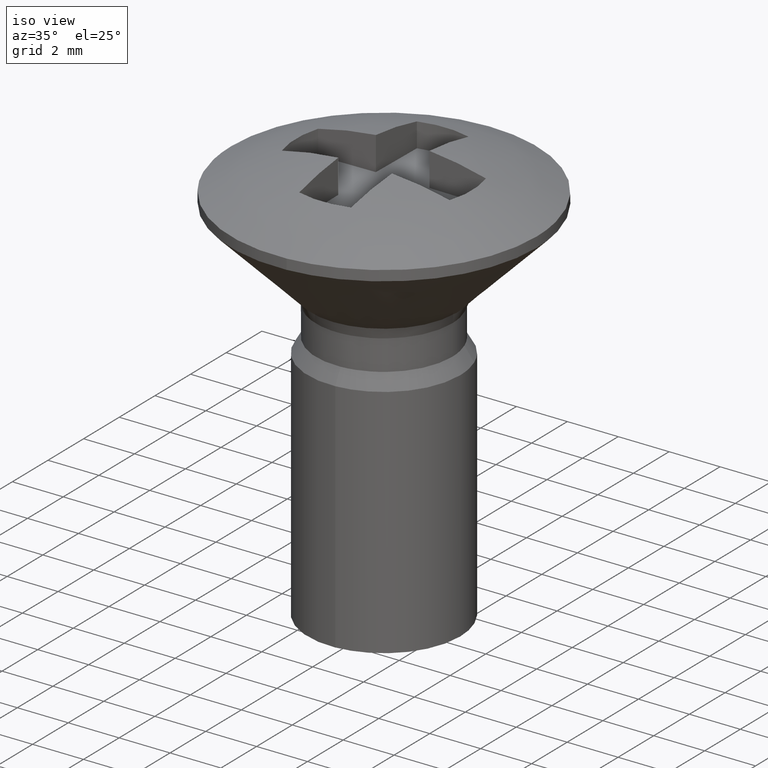
[diagram: clean part render]
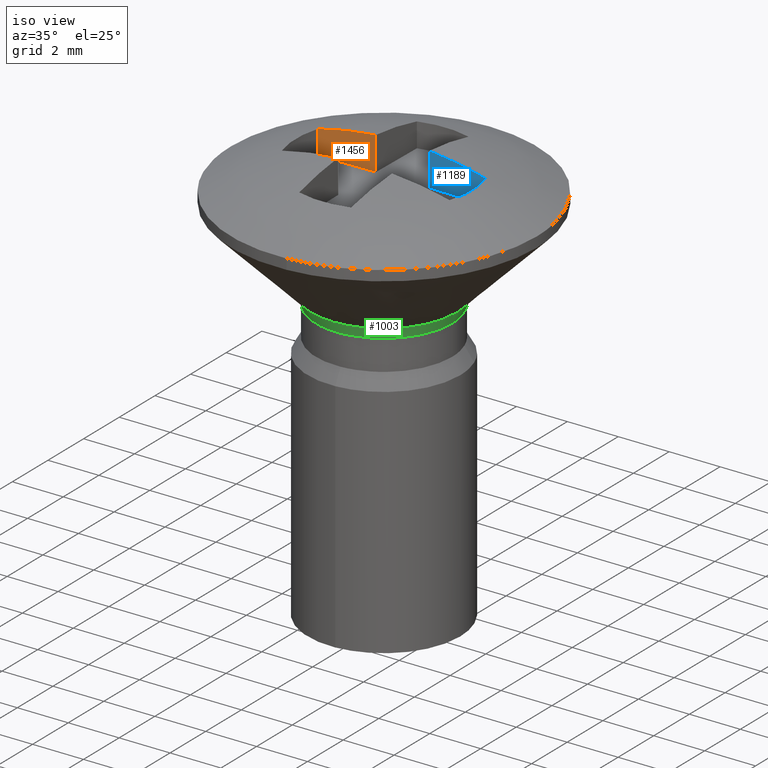
[diagram: same view with three faces highlighted in distinct colors, each labeled with its STEP entity id]
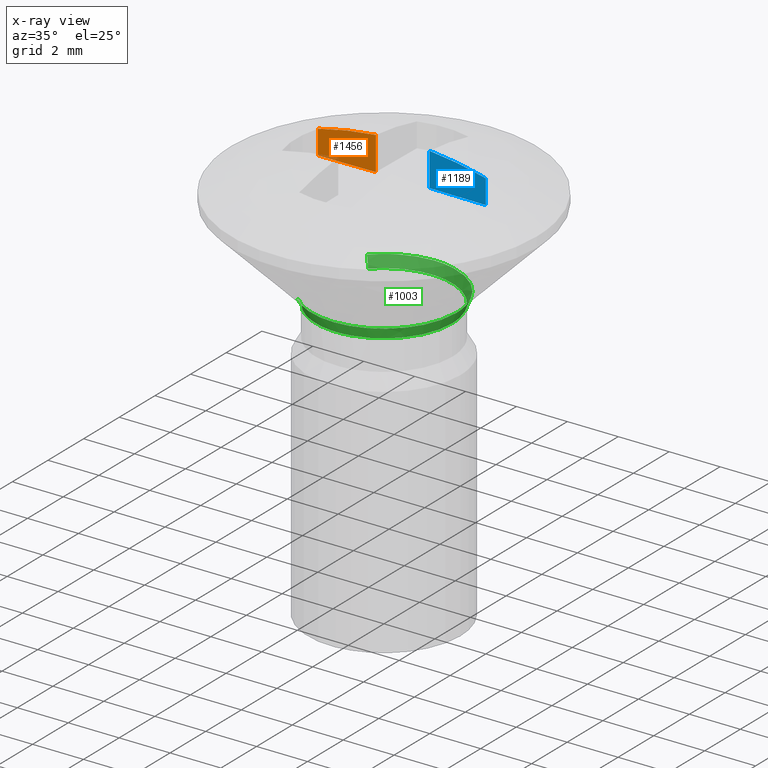
[diagram: x-ray of the same camera — body ghosted, the three highlighted faces saturated]
A machine part, iso view with three faces highlighted in distinct colors.
The next image is the same camera in x-ray (body ghosted, the three faces saturated) — at least one of them is partly hidden behind the body in this view.
Their STEP definitions:

[orange] entity #1456 — the highlighted face is a freeform B-spline surface patch.
#1059=CARTESIAN_POINT('',(-1.054135119686950,1.053812710704996,0.0));
#1060=VERTEX_POINT('',#1059);
#1066=CARTESIAN_POINT('',(-3.297313371468450,1.014999768638080,0.0));
#1067=VERTEX_POINT('',#1066);
#1068=CARTESIAN_POINT('',(-1.054135119686950,1.053812710704996,0.0));
#1069=CARTESIAN_POINT('',(-3.297313371468450,1.014999768638080,0.0));
#1070=QUASI_UNIFORM_CURVE('',1,(#1068,#1069),.UNSPECIFIED.,.F.,.U.);
#1071=EDGE_CURVE('',#1060,#1067,#1070,.T.);
#1402=CARTESIAN_POINT('',(-3.297313371468450,1.014999768638080,0.953676499124700));
#1403=VERTEX_POINT('',#1402);
#1419=CARTESIAN_POINT('',(-3.297313371468450,1.014999768638080,0.953676499124700));
#1420=CARTESIAN_POINT('',(-3.297313371468450,1.014999768638080,0.0));
#1421=QUASI_UNIFORM_CURVE('',1,(#1419,#1420),.UNSPECIFIED.,.F.,.U.);
#1422=EDGE_CURVE('',#1403,#1067,#1421,.T.);
#1427=CARTESIAN_POINT('',(-3.409360205026631,1.013061060799670,-0.065824678900434));
#1428=CARTESIAN_POINT('',(-0.942088306184345,1.055751418196390,-0.065824678900434));
#1429=CARTESIAN_POINT('',(-3.409360205026631,1.013061060799670,1.383636154779596));
#1430=CARTESIAN_POINT('',(-0.942088306184345,1.055751418196390,1.383636154779596));
#1431=B_SPLINE_SURFACE_WITH_KNOTS('',1,1,((#1427,#1429),(#1428,#1430)),.UNSPECIFIED.,.F.,.F.,.U.,(2,2),(2,2),(0.0,2.467641199492235),(0.041708334948495,0.958291687403247),.UNSPECIFIED.);
#1432=CARTESIAN_POINT('',(-1.054135119686950,1.053812710704996,1.317811440532704));
#1433=VERTEX_POINT('',#1432);
#1434=CARTESIAN_POINT('',(-1.054135119686949,1.053812710704996,1.317811440532703));
#1435=CARTESIAN_POINT('',(-2.191086262598551,1.034140435972617,1.230406841166867));
#1436=CARTESIAN_POINT('',(-3.297313371468450,1.014999768638080,0.953676499124700));
#1444=(BOUNDED_CURVE()B_SPLINE_CURVE(2,(#1434,#1435,#1436),.UNSPECIFIED.,.F.,.U.)CURVE()GEOMETRIC_REPRESENTATION_ITEM()QUASI_UNIFORM_CURVE()RATIONAL_B_SPLINE_CURVE((1.0,0.996458235029274,1.0))REPRESENTATION_ITEM(''));
#1445=EDGE_CURVE('',#1433,#1403,#1444,.T.);
#1446=ORIENTED_EDGE('',*,*,#1445,.T.);
#1447=ORIENTED_EDGE('',*,*,#1422,.T.);
#1448=ORIENTED_EDGE('',*,*,#1071,.F.);
#1449=CARTESIAN_POINT('',(-1.054135119686950,1.053812710704996,1.317811440532704));
#1450=CARTESIAN_POINT('',(-1.054135119686950,1.053812710704996,0.0));
#1451=QUASI_UNIFORM_CURVE('',1,(#1449,#1450),.UNSPECIFIED.,.F.,.U.);
#1452=EDGE_CURVE('',#1433,#1060,#1451,.T.);
#1453=ORIENTED_EDGE('',*,*,#1452,.F.);
#1454=EDGE_LOOP('',(#1446,#1447,#1448,#1453));
#1455=FACE_OUTER_BOUND('',#1454,.T.);
#1456=ADVANCED_FACE('',(#1455),#1431,.T.);

[blue] entity #1189 — the highlighted face is a freeform B-spline surface patch.
#1035=CARTESIAN_POINT('',(1.054135119686950,1.053812710704996,0.0));
#1036=VERTEX_POINT('',#1035);
#1131=CARTESIAN_POINT('',(3.297313371468450,1.014999768638080,0.0));
#1132=VERTEX_POINT('',#1131);
#1146=CARTESIAN_POINT('',(3.297313371468450,1.014999768638080,0.0));
#1147=CARTESIAN_POINT('',(1.054135119686950,1.053812710704996,0.0));
#1148=QUASI_UNIFORM_CURVE('',1,(#1146,#1147),.UNSPECIFIED.,.F.,.U.);
#1149=EDGE_CURVE('',#1132,#1036,#1148,.T.);
#1154=CARTESIAN_POINT('',(0.942088328243474,1.055751417814710,-0.065824678900434));
#1155=CARTESIAN_POINT('',(3.409360182967502,1.013061061181354,-0.065824678900434));
#1156=CARTESIAN_POINT('',(0.942088328243474,1.055751417814710,1.383636154779596));
#1157=CARTESIAN_POINT('',(3.409360182967502,1.013061061181354,1.383636154779596));
#1158=B_SPLINE_SURFACE_WITH_KNOTS('',1,1,((#1154,#1156),(#1155,#1157)),.UNSPECIFIED.,.F.,.F.,.U.,(2,2),(2,2),(0.0,2.467641155367374),(0.041708334948495,0.958291687403247),.UNSPECIFIED.);
#1159=CARTESIAN_POINT('',(3.297313371468450,1.014999768638080,0.953676499124680));
#1160=VERTEX_POINT('',#1159);
#1161=CARTESIAN_POINT('',(1.054135119686950,1.053812710704996,1.317811440532704));
#1162=VERTEX_POINT('',#1161);
#1163=CARTESIAN_POINT('',(3.297313371468450,1.014999768638080,0.953676499124678));
#1164=CARTESIAN_POINT('',(2.191086262598550,1.034140435972619,1.230406841166867));
#1165=CARTESIAN_POINT('',(1.054135119686951,1.053812710704998,1.317811440532703));
#1173=(BOUNDED_CURVE()B_SPLINE_CURVE(2,(#1163,#1164,#1165),.UNSPECIFIED.,.F.,.U.)CURVE()GEOMETRIC_REPRESENTATION_ITEM()QUASI_UNIFORM_CURVE()RATIONAL_B_SPLINE_CURVE((1.0,0.996458235029274,1.0))REPRESENTATION_ITEM(''));
#1174=EDGE_CURVE('',#1160,#1162,#1173,.T.);
#1175=ORIENTED_EDGE('',*,*,#1174,.T.);
#1176=CARTESIAN_POINT('',(1.054135119686950,1.053812710704996,1.317811440532704));
#1177=CARTESIAN_POINT('',(1.054135119686950,1.053812710704996,0.0));
#1178=QUASI_UNIFORM_CURVE('',1,(#1176,#1177),.UNSPECIFIED.,.F.,.U.);
#1179=EDGE_CURVE('',#1162,#1036,#1178,.T.);
#1180=ORIENTED_EDGE('',*,*,#1179,.T.);
#1181=ORIENTED_EDGE('',*,*,#1149,.F.);
#1182=CARTESIAN_POINT('',(3.297313371468450,1.014999768638080,0.953676499124680));
#1183=CARTESIAN_POINT('',(3.297313371468450,1.014999768638080,0.0));
#1184=QUASI_UNIFORM_CURVE('',1,(#1182,#1183),.UNSPECIFIED.,.F.,.U.);
#1185=EDGE_CURVE('',#1160,#1132,#1184,.T.);
#1186=ORIENTED_EDGE('',*,*,#1185,.F.);
#1187=EDGE_LOOP('',(#1175,#1180,#1181,#1186));
#1188=FACE_OUTER_BOUND('',#1187,.T.);
#1189=ADVANCED_FACE('',(#1188),#1158,.T.);

[green] entity #1003 — the highlighted face is a freeform B-spline surface patch.
#85=CARTESIAN_POINT('',(-1.555346784566390,2.176355067478408,-3.973499999998483));
#86=VERTEX_POINT('',#85);
#92=CARTESIAN_POINT('',(2.675000000000000,0.0,-3.973500000000000));
#93=VERTEX_POINT('',#92);
#94=CARTESIAN_POINT('',(-1.555346784566390,2.176355067478409,-3.973499999998483));
#95=CARTESIAN_POINT('',(-0.857606183206234,2.675000000000000,-3.973500000000000));
#96=CARTESIAN_POINT('',(0.0,2.675000000000000,-3.973500000000000));
#97=CARTESIAN_POINT('',(2.675000000000000,2.675000000000000,-3.973499999999999));
#98=CARTESIAN_POINT('',(2.675000000000000,0.0,-3.973500000000000));
#106=(BOUNDED_CURVE()B_SPLINE_CURVE(2,(#94,#95,#96,#97,#98),.UNSPECIFIED.,.F.,.U.)B_SPLINE_CURVE_WITH_KNOTS((3,2,3),(0.149938498889355,0.250000000000000,0.500000000000000),.UNSPECIFIED.)CURVE()GEOMETRIC_REPRESENTATION_ITEM()RATIONAL_B_SPLINE_CURVE((0.859382469207064,0.882770659441590,1.0,0.707106781186548,1.0))REPRESENTATION_ITEM(''));
#107=EDGE_CURVE('',#86,#93,#106,.T.);
#109=CARTESIAN_POINT('',(1.151614677313381,-2.414416831242833,-3.973500000000000));
#110=VERTEX_POINT('',#109);
#111=CARTESIAN_POINT('',(2.675000000000000,0.0,-3.973500000000000));
#112=CARTESIAN_POINT('',(2.675000000000000,-1.687801246848165,-3.973500000000001));
#113=CARTESIAN_POINT('',(1.151614677313382,-2.414416831242833,-3.973499999999999));
#121=(BOUNDED_CURVE()B_SPLINE_CURVE(2,(#111,#112,#113),.UNSPECIFIED.,.F.,.U.)B_SPLINE_CURVE_WITH_KNOTS((3,3),(0.500000000000000,0.676854881414600),.UNSPECIFIED.)CURVE()GEOMETRIC_REPRESENTATION_ITEM()RATIONAL_B_SPLINE_CURVE((1.0,0.792801618078426,0.878755598269148))REPRESENTATION_ITEM(''));
#122=EDGE_CURVE('',#93,#110,#121,.T.);
#226=CARTESIAN_POINT('',(-1.855522593049254,-1.926826641575151,-3.973499999997430));
#227=VERTEX_POINT('',#226);
#228=CARTESIAN_POINT('',(1.151614677313382,-2.414416831242833,-3.973499999999999));
#229=CARTESIAN_POINT('',(0.605289243141418,-2.675000000000001,-3.973500000000000));
#230=CARTESIAN_POINT('',(0.0,-2.675000000000000,-3.973500000000000));
#231=CARTESIAN_POINT('',(-1.078598418194166,-2.675000000000000,-3.973500000000000));
#232=CARTESIAN_POINT('',(-1.855522593049253,-1.926826641575151,-3.973499999997430));
#240=(BOUNDED_CURVE()B_SPLINE_CURVE(2,(#228,#229,#230,#231,#232),.UNSPECIFIED.,.F.,.U.)B_SPLINE_CURVE_WITH_KNOTS((3,2,3),(0.676854881414600,0.750000000000000,0.872155737437356),.UNSPECIFIED.)CURVE()GEOMETRIC_REPRESENTATION_ITEM()RATIONAL_B_SPLINE_CURVE((0.878755598269148,0.914305163108122,1.0,0.856885651461767,0.853629213191972))REPRESENTATION_ITEM(''));
#241=EDGE_CURVE('',#110,#227,#240,.T.);
#258=CARTESIAN_POINT('',(-1.926826641575151,1.855522593049253,-3.973499999997507));
#259=VERTEX_POINT('',#258);
#273=CARTESIAN_POINT('',(-1.926826641575151,1.855522593049253,-3.973499999997508));
#274=CARTESIAN_POINT('',(-1.755866703456866,2.033052182094579,-3.973499999998047));
#275=CARTESIAN_POINT('',(-1.555346784566390,2.176355067478409,-3.973499999998483));
#283=(BOUNDED_CURVE()B_SPLINE_CURVE(2,(#273,#274,#275),.UNSPECIFIED.,.F.,.U.)B_SPLINE_CURVE_WITH_KNOTS((3,3),(0.122155737437357,0.149938498889355),.UNSPECIFIED.)CURVE()GEOMETRIC_REPRESENTATION_ITEM()RATIONAL_B_SPLINE_CURVE((0.853629213191972,0.852888577921530,0.859382469207064))REPRESENTATION_ITEM(''));
#284=EDGE_CURVE('',#259,#86,#283,.T.);
#806=CARTESIAN_POINT('',(-2.053384943786267,1.977397485177773,-3.549199990922614));
#807=VERTEX_POINT('',#806);
#808=CARTESIAN_POINT('',(-1.276496173613639,2.548930768124038,-3.549199990890750));
#809=VERTEX_POINT('',#808);
#810=CARTESIAN_POINT('',(-2.053384943786266,1.977397485177772,-3.549199990922614));
#811=CARTESIAN_POINT('',(-1.713988900367862,2.329835844594270,-3.549199990903433));
#812=CARTESIAN_POINT('',(-1.276496173613639,2.548930768124038,-3.549199990890750));
#820=(BOUNDED_CURVE()B_SPLINE_CURVE(2,(#810,#811,#812),.UNSPECIFIED.,.F.,.U.)B_SPLINE_CURVE_WITH_KNOTS((3,3),(0.122155737437422,0.173872947074185),.UNSPECIFIED.)CURVE()GEOMETRIC_REPRESENTATION_ITEM()RATIONAL_B_SPLINE_CURVE((0.853629213191968,0.852250531320798,0.875940413896465))REPRESENTATION_ITEM(''));
#821=EDGE_CURVE('',#807,#809,#820,.T.);
#838=CARTESIAN_POINT('',(-1.977397485166888,-2.053384943774736,-3.549199990938469));
#839=VERTEX_POINT('',#838);
#853=CARTESIAN_POINT('',(2.850700009125215,0.0,-3.549199990875085));
#854=VERTEX_POINT('',#853);
#855=CARTESIAN_POINT('',(2.850700009125215,0.0,-3.549199990875085));
#856=CARTESIAN_POINT('',(2.850700009125214,-2.850700009125214,-3.549199990875084));
#857=CARTESIAN_POINT('',(0.0,-2.850700009125215,-3.549199990875085));
#858=CARTESIAN_POINT('',(-1.149443185267650,-2.850700009125214,-3.549199990875085));
#859=CARTESIAN_POINT('',(-1.977397485166888,-2.053384943774736,-3.549199990938469));
#867=(BOUNDED_CURVE()B_SPLINE_CURVE(2,(#855,#856,#857,#858,#859),.UNSPECIFIED.,.F.,.U.)B_SPLINE_CURVE_WITH_KNOTS((3,2,3),(0.500000000000000,0.750000000000000,0.872155737437438),.UNSPECIFIED.)CURVE()GEOMETRIC_REPRESENTATION_ITEM()RATIONAL_B_SPLINE_CURVE((1.0,0.707106781186548,1.0,0.856885651461671,0.853629213191967))REPRESENTATION_ITEM(''));
#868=EDGE_CURVE('',#854,#839,#867,.T.);
#870=CARTESIAN_POINT('',(0.809639807743056,2.733304562638696,-3.549203514741832));
#871=VERTEX_POINT('',#870);
#872=CARTESIAN_POINT('',(0.809639807743056,2.733304562638695,-3.549203514741832));
#873=CARTESIAN_POINT('',(2.850699508694201,2.128718383856893,-3.549201752808458));
#874=CARTESIAN_POINT('',(2.850700009125215,0.0,-3.549199990875085));
#882=(BOUNDED_CURVE()B_SPLINE_CURVE(2,(#872,#873,#874),.UNSPECIFIED.,.F.,.U.)B_SPLINE_CURVE_WITH_KNOTS((3,3),(0.298358380853261,0.500000000000000),.UNSPECIFIED.)CURVE()GEOMETRIC_REPRESENTATION_ITEM()RATIONAL_B_SPLINE_CURVE((0.908607360036015,0.763762148485421,1.0))REPRESENTATION_ITEM(''));
#883=EDGE_CURVE('',#871,#854,#882,.T.);
#917=CARTESIAN_POINT('',(-1.276496173613639,2.548930768124038,-3.549199990890750));
#918=CARTESIAN_POINT('',(-0.673918166146266,2.850698997848563,-3.549201045553160));
#919=CARTESIAN_POINT('',(-0.000000620369689,2.850697914780568,-3.549202175100543));
#920=CARTESIAN_POINT('',(0.413330087991935,2.850697250507521,-3.549202867880578));
#921=CARTESIAN_POINT('',(0.809639807743056,2.733304562638695,-3.549203514741832));
#929=(BOUNDED_CURVE()B_SPLINE_CURVE(2,(#917,#918,#919,#920,#921),.UNSPECIFIED.,.F.,.U.)B_SPLINE_CURVE_WITH_KNOTS((3,2,3),(0.173872947074185,0.250000000000000,0.298358380853261),.UNSPECIFIED.)CURVE()GEOMETRIC_REPRESENTATION_ITEM()RATIONAL_B_SPLINE_CURVE((0.875940413896465,0.910811609719105,1.0,0.943344632701126,0.908607360036015))REPRESENTATION_ITEM(''));
#930=EDGE_CURVE('',#809,#871,#929,.T.);
#938=CARTESIAN_POINT('',(-1.927144093848084,1.855828297699548,-3.996358158239980));
#939=CARTESIAN_POINT('',(-0.071315796148535,3.782972391547631,-3.996358158239981));
#940=CARTESIAN_POINT('',(1.855828297699548,1.927144093848084,-3.996358158239980));
#941=CARTESIAN_POINT('',(3.782972391547631,0.071315796148535,-3.996358158239981));
#942=CARTESIAN_POINT('',(1.927144093848084,-1.855828297699549,-3.996358158239980));
#943=CARTESIAN_POINT('',(0.071315796148535,-3.782972391547631,-3.996358158239981));
#944=CARTESIAN_POINT('',(-1.855828297699549,-1.927144093848084,-3.996358158239980));
#945=CARTESIAN_POINT('',(-1.919531046859026,1.848496978739480,-3.720794978397269));
#946=CARTESIAN_POINT('',(-0.071034068119545,3.768028025598506,-3.720794978397271));
#947=CARTESIAN_POINT('',(1.848496978739480,1.919531046859026,-3.720794978397269));
#948=CARTESIAN_POINT('',(3.768028025598506,0.071034068119545,-3.720794978397271));
#949=CARTESIAN_POINT('',(1.919531046859024,-1.848496978739480,-3.720794978397269));
#950=CARTESIAN_POINT('',(0.071034068119544,-3.768028025598506,-3.720794978397271));
#951=CARTESIAN_POINT('',(-1.848496978739480,-1.919531046859026,-3.720794978397269));
#952=CARTESIAN_POINT('',(-2.065234254223090,1.988808300635441,-3.533364775071310));
#953=CARTESIAN_POINT('',(-0.076425953587649,4.054042554858532,-3.533364775071311));
#954=CARTESIAN_POINT('',(1.988808300635441,2.065234254223090,-3.533364775071310));
#955=CARTESIAN_POINT('',(4.054042554858532,0.076425953587650,-3.533364775071311));
#956=CARTESIAN_POINT('',(2.065234254223090,-1.988808300635441,-3.533364775071310));
#957=CARTESIAN_POINT('',(0.076425953587649,-4.054042554858532,-3.533364775071311));
#958=CARTESIAN_POINT('',(-1.988808300635441,-2.065234254223090,-3.533364775071310));
#966=(BOUNDED_SURFACE()B_SPLINE_SURFACE(2,2,((#938,#945,#952),(#939,#946,#953),(#940,#947,#954),(#941,#948,#955),(#942,#949,#956),(#943,#950,#957),(#944,#951,#958)),.UNSPECIFIED.,.F.,.F.,.U.)B_SPLINE_SURFACE_WITH_KNOTS((3,2,2,3),(3,3),(0.0,4.750450198564773,9.500900397129545,14.251350595694319),(0.0,0.525115443898526),.UNSPECIFIED.)GEOMETRIC_REPRESENTATION_ITEM()RATIONAL_B_SPLINE_SURFACE(((0.930174637166857,0.845702090624084,0.931403074723853),(0.657732793628421,0.598001683143930,0.658601430155237),(0.930174637166857,0.845702090624084,0.931403074723853),(0.657732793628421,0.598001683143930,0.658601430155237),(0.930174637166857,0.845702090624084,0.931403074723853),(0.657732793628421,0.598001683143930,0.658601430155237),(0.930174637166857,0.845702090624084,0.931403074723853)))REPRESENTATION_ITEM('')SURFACE());
#967=ORIENTED_EDGE('',*,*,#284,.F.);
#968=CARTESIAN_POINT('',(-1.926826641575151,1.855522593049254,-3.973499999997507));
#969=CARTESIAN_POINT('',(-1.926787195154310,1.855484606380652,-3.724949174951655));
#970=CARTESIAN_POINT('',(-2.053384943786267,1.977397485177773,-3.549199990922615));
#978=(BOUNDED_CURVE()B_SPLINE_CURVE(2,(#968,#969,#970),.UNSPECIFIED.,.F.,.U.)B_SPLINE_CURVE_WITH_KNOTS((3,3),(-1.556498353268006,-0.434593726417494),.UNSPECIFIED.)CURVE()GEOMETRIC_REPRESENTATION_ITEM()RATIONAL_B_SPLINE_CURVE((0.922853248910305,0.853079258443138,0.923970127591897))REPRESENTATION_ITEM(''));
#979=EDGE_CURVE('',#259,#807,#978,.T.);
#980=ORIENTED_EDGE('',*,*,#979,.T.);
#981=ORIENTED_EDGE('',*,*,#821,.T.);
#982=ORIENTED_EDGE('',*,*,#930,.T.);
#983=ORIENTED_EDGE('',*,*,#883,.T.);
#984=ORIENTED_EDGE('',*,*,#868,.T.);
#985=CARTESIAN_POINT('',(-1.855522593049254,-1.926826641575151,-3.973499999997430));
#986=CARTESIAN_POINT('',(-1.855484606380702,-1.926787195154360,-3.724949174977866));
#987=CARTESIAN_POINT('',(-1.977397485166888,-2.053384943774736,-3.549199990938469));
#995=(BOUNDED_CURVE()B_SPLINE_CURVE(2,(#985,#986,#987),.UNSPECIFIED.,.F.,.U.)B_SPLINE_CURVE_WITH_KNOTS((3,3),(-1.556498353267629,-0.434593726527118),.UNSPECIFIED.)CURVE()GEOMETRIC_REPRESENTATION_ITEM()RATIONAL_B_SPLINE_CURVE((0.922853248910258,0.853079258449979,0.923970127578043))REPRESENTATION_ITEM(''));
#996=EDGE_CURVE('',#227,#839,#995,.T.);
#997=ORIENTED_EDGE('',*,*,#996,.F.);
#998=ORIENTED_EDGE('',*,*,#241,.F.);
#999=ORIENTED_EDGE('',*,*,#122,.F.);
#1000=ORIENTED_EDGE('',*,*,#107,.F.);
#1001=EDGE_LOOP('',(#967,#980,#981,#982,#983,#984,#997,#998,#999,#1000));
#1002=FACE_OUTER_BOUND('',#1001,.T.);
#1003=ADVANCED_FACE('',(#1002),#966,.F.);